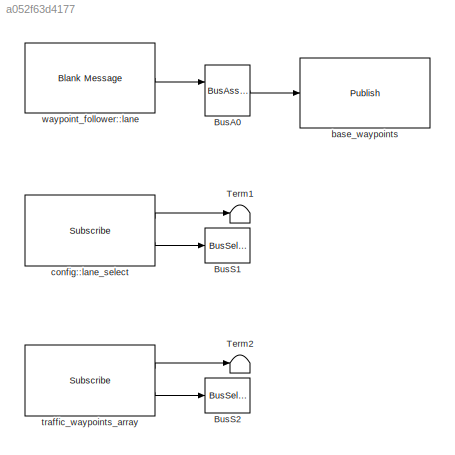
MODEL slx_a052f63d4177
KIND model
CONFIG AbsTol = auto
CONFIG EnableMultiTasking = off
CONFIG FixedStep = auto
CONFIG MaxStep = auto
CONFIG MinStep = auto
CONFIG RelTol = 1e-3
CONFIG SampleTimeConstraint = Unconstrained
CONFIG Solver = VariableStepAuto
CONFIG SolverName = VariableStepAuto
CONFIG StartTime = 0.0
CONFIG StopTime = 10.0
BLOCK [BusAssignment] BusA0
  AssignedSignals = signal1
  Ports = [2, 1]
BLOCK [BusSelector] BusS1
  OutputSignals = signal1,signal2
  Ports = [1, 2]
BLOCK [BusSelector] BusS2
  OutputSignals = signal1,signal2
  Ports = [1, 2]
BLOCK [Terminator] Term1
BLOCK [Terminator] Term2
BLOCK [Reference] base_waypoints  REF=robotlib/Publish
  Ports = [1]
  SourceBlock = robotlib/Publish
  SourceLibraryInfo = This block requires Robotics System Toolbox
  SourceType = ROS Publish
BLOCK [Reference] config::lane_select  REF=robotlib/Subscribe
  Ports = [0, 2]
  SourceBlock = robotlib/Subscribe
  SourceLibraryInfo = This block requires Robotics System Toolbox
  SourceType = ROS Subscribe
BLOCK [Reference] traffic_waypoints_array  REF=robotlib/Subscribe
  Ports = [0, 2]
  SourceBlock = robotlib/Subscribe
  SourceLibraryInfo = This block requires Robotics System Toolbox
  SourceType = ROS Subscribe
BLOCK [Reference] waypoint_follower::lane  REF=robotlib/Blank Message
  Ports = [0, 1]
  SourceBlock = robotlib/Blank Message
  SourceLibraryInfo = This block requires Robotics System Toolbox
  SourceType = ROS Blank Message
LINE BusA0:1 -> base_waypoints:1
LINE config::lane_select:1 -> Term1:1
LINE config::lane_select:2 -> BusS1:1
LINE traffic_waypoints_array:1 -> Term2:1
LINE traffic_waypoints_array:2 -> BusS2:1
LINE waypoint_follower::lane:1 -> BusA0:1
